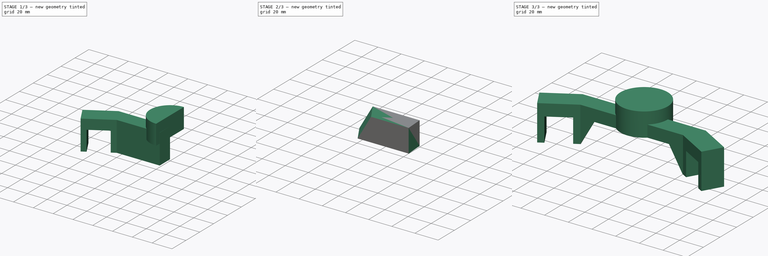
[diagram: build sequence overview — one tinted view per stage of 3, left to right]
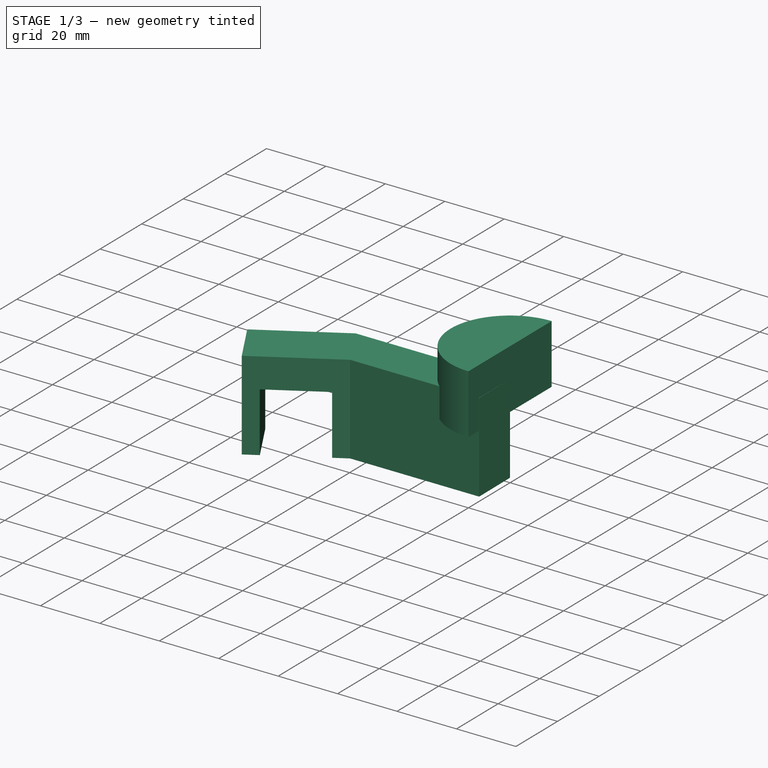
[diagram: stage 1 of 3 — iso view after this stage's code; geometry added in this stage tinted green]
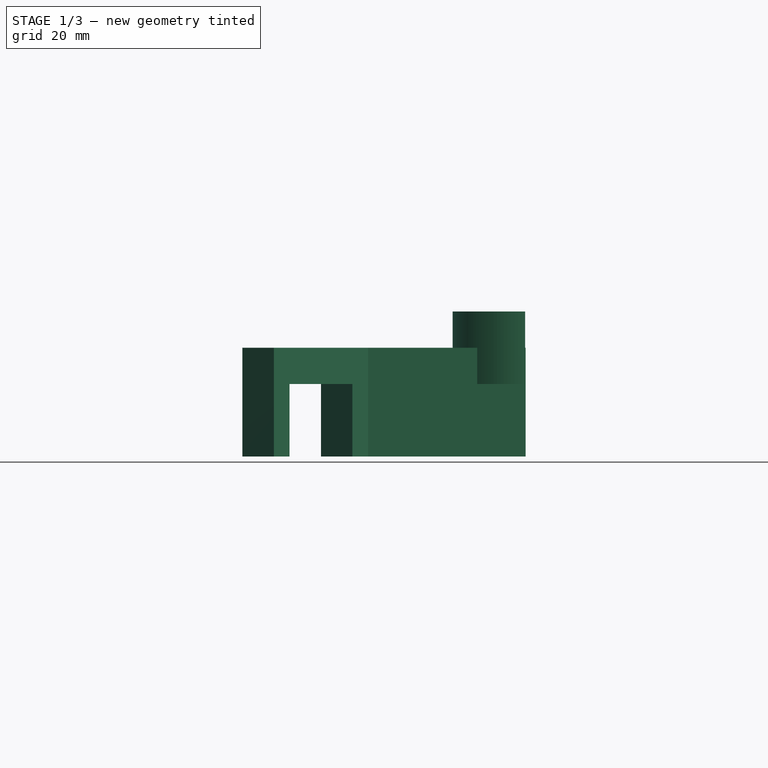
[diagram: stage 1 of 3 — front view after this stage's code; geometry added in this stage tinted green]
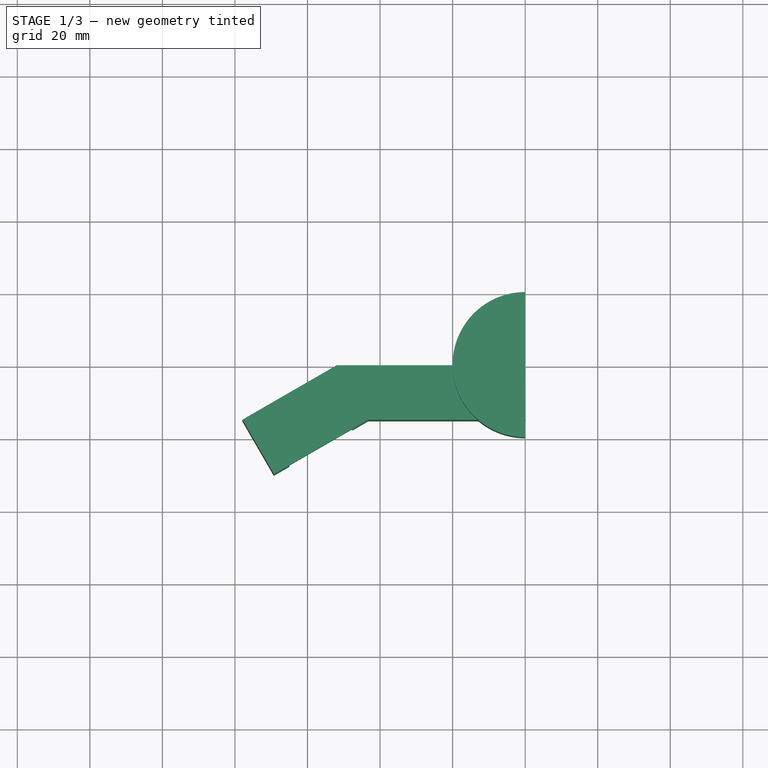
[diagram: stage 1 of 3 — top view after this stage's code; geometry added in this stage tinted green]
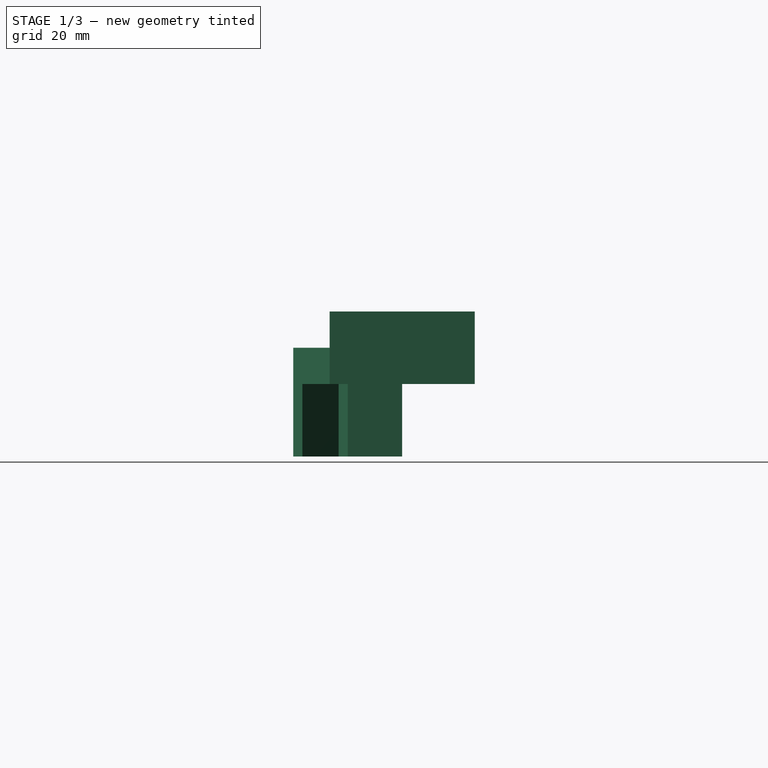
[diagram: stage 1 of 3 — right view after this stage's code; geometry added in this stage tinted green]
FCSTD DOCUMENT  (FreeCAD 0.16R6703 (Git))
Label: holder
License: All rights reserved
LicenseURL: http://en.wikipedia.org/wiki/All_rights_reserved
objects: Sketcher::SketchObject×5, PartDesign::Pad×2, Part::MultiFuse×2, PartDesign::Pocket×1, Part::Loft×1, Part::Cut×1, Part::Mirroring×1
note: 16 computed .brp shape members not serialized (recipe doc carries the construction recipe); baked Part::Feature solids carry a one-line shape summary decoded from their .brp

FEATURE [Sketcher::SketchObject] Sketch
  sketch-geometry (12):
    g0: LineSegment [constr] StartX=-100 StartY=173.205 StartZ=0 EndX=0 EndY=0 EndZ=0
    g1: LineSegment [constr] StartX=0 StartY=10 StartZ=0 EndX=-95.6699 EndY=175.705 EndZ=0
    g2: LineSegment [constr] StartX=0 StartY=100 StartZ=0 EndX=-51.9615 EndY=100 EndZ=0
    g3: GeomPoint [constr] X=-51.9615 Y=100 Z=0
    g4: LineSegment StartX=-51.9615 StartY=100 StartZ=0 EndX=0 EndY=100 EndZ=0
    g5: LineSegment StartX=-43.3013 StartY=85 StartZ=0 EndX=0.112312 EndY=85 EndZ=0
    g6: LineSegment StartX=-51.9615 StartY=100 StartZ=0 EndX=-77.9423 EndY=85 EndZ=0
    g7: LineSegment StartX=-77.9423 StartY=85 StartZ=0 EndX=-69.282 EndY=70 EndZ=0
    g8: LineSegment StartX=-69.282 StartY=70 StartZ=0 EndX=-43.3013 EndY=85 EndZ=0
    g9: LineSegment StartX=0 StartY=100 StartZ=0 EndX=0.112312 EndY=85 EndZ=0
    g10: LineSegment [constr] StartX=-95.6699 StartY=175.705 StartZ=0 EndX=-100 EndY=173.205 EndZ=0
    g11: GeomPoint [constr] X=0 Y=100 Z=0
  constraints (32):
    c: Coincident(g0,g-1)
    c: Angle(g-2,g0) = 0.523599
    c: PointOnObject(g1,g-2)
    c: DistanceY(g-1,g2) = 100
    c: Distance(g0) = 200
    c: Horizontal(g2)
    c: PointOnObject(g3,g1)
    c: Coincident(g2,g3)
    c: PointOnObject(g4,g1)
    c: PointOnObject(g4,g-2)
    c: Horizontal(g4)
    c: PointOnObject(g5,g1)
    c: Horizontal(g5)
    c: DistanceY(g5,g4) = 15
    c: Coincident(g4,g6)
    c: Coincident(g6,g7)
    c: Coincident(g7,g8)
    c: Coincident(g8,g5)
    c: Parallel(g6,g8)
    c: Distance(g6) = 30
    c: Perpendicular(g6,g1)
    c: Coincident(g9,g4)
    c: Coincident(g9,g5)
    c: Coincident(g10,g1)
    c: Coincident(g10,g0)
    c: Distance(g10) = 5
    c: Parallel(g1,g0)
    c: Perpendicular(g0,g10)
    c: Equal(g6,g8)
    c: PointOnObject(g11,g9)
    c: Coincident(g2,g11)
    c: Coincident(g4,g2)
FEATURE [Sketcher::SketchObject] Sketch002
  Placement = pos=(0,85,0) rot=(1,0,0;1.5708rad)
  sketch-geometry (6):
    g0: LineSegment StartX=1 StartY=20 StartZ=0 EndX=-31.453 EndY=20 EndZ=0
    g1: LineSegment StartX=-31.453 StartY=20 StartZ=0 EndX=-43 EndY=0 EndZ=0
    g2: LineSegment StartX=-43 StartY=0 StartZ=0 EndX=1 EndY=0 EndZ=0
    g3: GeomPoint [constr] X=1 Y=20 Z=0
    g4: LineSegment StartX=1 StartY=20 StartZ=0 EndX=1 EndY=0 EndZ=0
    g5: GeomPoint [constr] X=1 Y=0 Z=0
  constraints (14):
    c: Horizontal(g0)
    c: Coincident(g0,g1)
    c: Coincident(g1,g2)
    c: DistanceY(g2,g0) = 20
    c: Angle(g2,g1) = 1.0472
    c: Coincident(g3,g0)
    c: DistanceX(g2,g2) = 44
    c: Coincident(g4,g0)
    c: Coincident(g4,g2)
    c: Vertical(g4)
    c: PointOnObject(g5,g-1)
    c: Coincident(g5,g2)
    c: DistanceX(g-1,g2) = 1
    c: Horizontal(g2)
FEATURE [Sketcher::SketchObject] Sketch005
  Placement = pos=(0,0,30) rot=(0,0,1;0rad)
  sketch-geometry (5):
    g0: ArcOfCircle CenterX=0 CenterY=100 CenterZ=0 NormalX=0 NormalY=0 NormalZ=1 Radius=20 StartAngle=1.5708 EndAngle=4.71239
    g1: GeomPoint [constr] X=0 Y=80 Z=0
    g2: LineSegment StartX=0 StartY=120 StartZ=0 EndX=0 EndY=80 EndZ=0
    g3: GeomPoint [constr] X=0 Y=120 Z=0
    g4: GeomPoint [constr] X=0 Y=100 Z=0
  constraints (12):
    c: Radius(g0) = 20
    c: PointOnObject(g1,g0)
    c: PointOnObject(g2,g-2)
    c: PointOnObject(g2,g-2)
    c: Coincident(g1,g2)
    c: PointOnObject(g3,g0)
    c: Coincident(g2,g3)
    c: DistanceY(g-1,g0) = 100
    c: PointOnObject(g0,g2)
    c: PointOnObject(g0,g2)
    c: PointOnObject(g4,g2)
    c: Coincident(g0,g4)
FEATURE [PartDesign::Pad] Pad
  Length = 30
  Length2 = 100
  Sketch = -> Sketch
  Type = 0
FEATURE [Sketcher::SketchObject] Sketch001
  Placement = pos=(-47.6314,82.5,0) rot=(0.935113,0.250563,0.250563;1.63783rad)
  Support = -> Pad [Face5]
  sketch-geometry (4):
    g0: LineSegment StartX=0 StartY=0 StartZ=0 EndX=-20 EndY=0 EndZ=0
    g1: LineSegment StartX=-20 StartY=0 StartZ=0 EndX=-20 EndY=20 EndZ=0
    g2: LineSegment StartX=-20 StartY=20 StartZ=0 EndX=0 EndY=20 EndZ=0
    g3: LineSegment StartX=0 StartY=20 StartZ=0 EndX=0 EndY=0 EndZ=0
  constraints (11):
    c: Coincident(g0,g1)
    c: Coincident(g1,g2)
    c: Coincident(g2,g3)
    c: Coincident(g3,g0)
    c: Horizontal(g0)
    c: Horizontal(g2)
    c: Vertical(g1)
    c: Vertical(g3)
    c: Coincident(g0,g-1)
    c: Equal(g2,g3)
    c: DistanceY(g3,g3) = 20
FEATURE [PartDesign::Pocket] Pocket
  Length = 50
  Sketch = -> Sketch001
  Type = 0
FEATURE [PartDesign::Pad] Pad001
  Length = 20
  Length2 = 100
  Midplane = true
  Placement = pos=(0,0,30) rot=(0,0,1;0rad)
  Sketch = -> Sketch005
  Type = 0
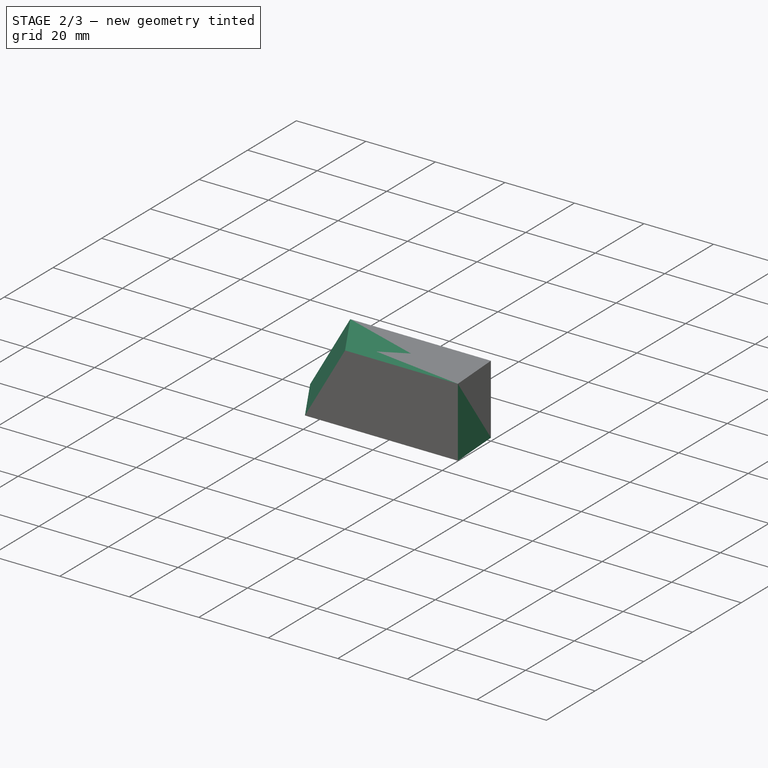
[diagram: stage 2 of 3 — iso view after this stage's code; geometry added in this stage tinted green]
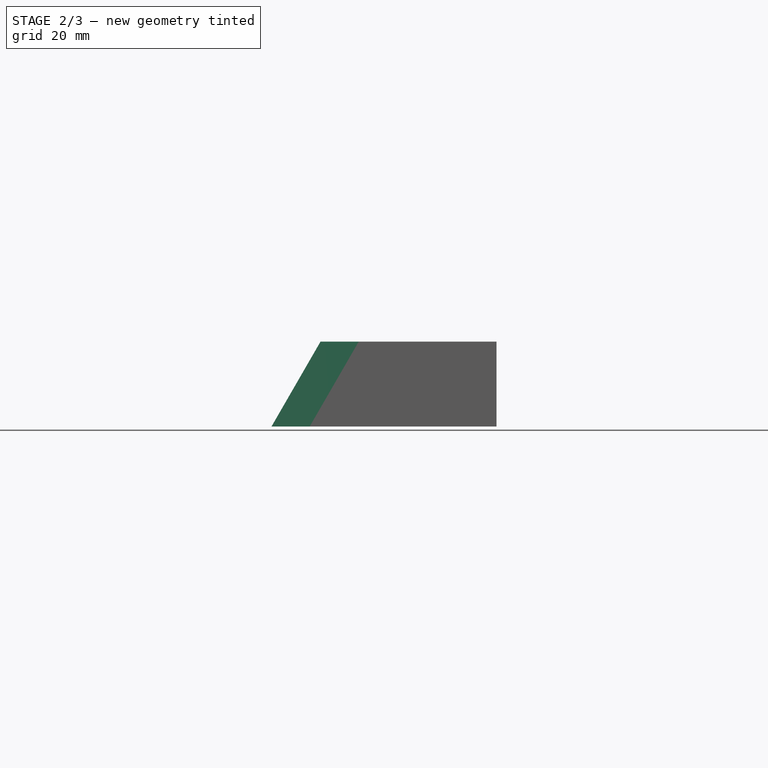
[diagram: stage 2 of 3 — front view after this stage's code; geometry added in this stage tinted green]
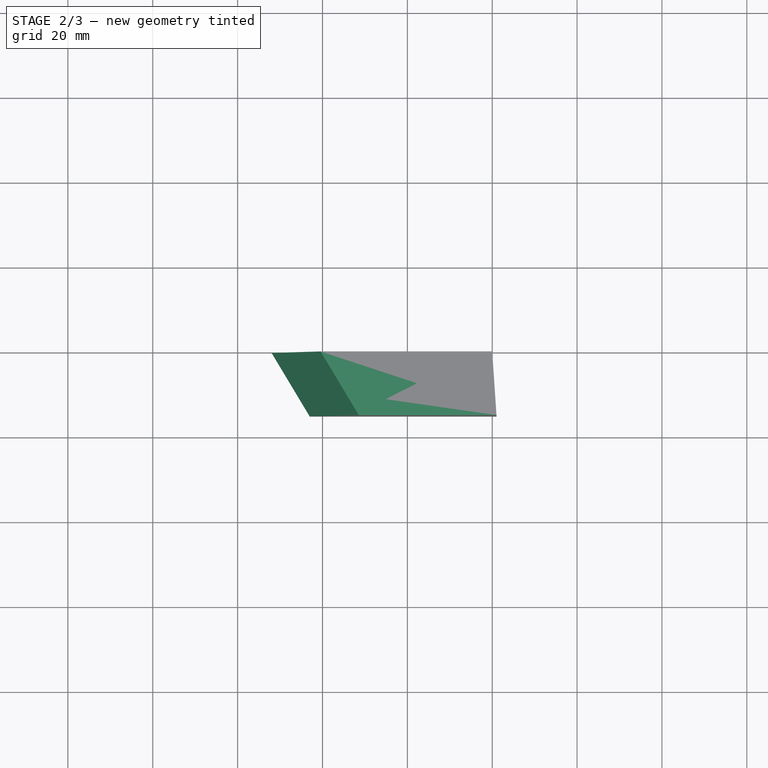
[diagram: stage 2 of 3 — top view after this stage's code; geometry added in this stage tinted green]
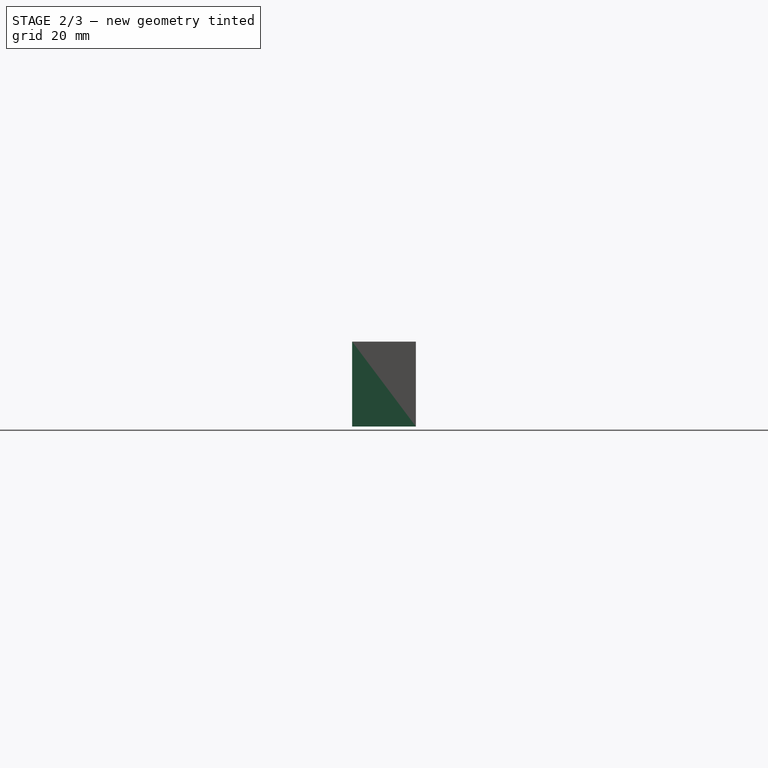
[diagram: stage 2 of 3 — right view after this stage's code; geometry added in this stage tinted green]
FEATURE [Part::MultiFuse] Fusion
  Shapes = -> [Pocket,Pad001]
FEATURE [Sketcher::SketchObject] Sketch003
  Placement = pos=(0,100,0) rot=(0,0.707107,0.707107;3.14159rad)
  Support = -> Fusion [Face9]
  sketch-geometry (4):
    g0: LineSegment StartX=0 StartY=20 StartZ=0 EndX=40.453 EndY=20 EndZ=0
    g1: LineSegment StartX=40.453 StartY=20 StartZ=0 EndX=52 EndY=0 EndZ=0
    g2: LineSegment StartX=52 StartY=0 StartZ=0 EndX=0 EndY=0 EndZ=0
    g3: LineSegment StartX=0 StartY=0 StartZ=0 EndX=0 EndY=20 EndZ=0
  constraints (11):
    c: PointOnObject(g0,g-2)
    c: Horizontal(g0)
    c: Coincident(g0,g1)
    c: PointOnObject(g1,g-1)
    c: Coincident(g1,g2)
    c: Coincident(g2,g-1)
    c: Coincident(g2,g3)
    c: Coincident(g3,g0)
    c: Angle(g1,g2) = 1.0472
    c: DistanceX(g2,g2) = 52
    c: DistanceY(g3,g3) = 20
FEATURE [Part::Loft] Loft
  Closed = false
  Ruled = false
  Sections = -> [Sketch002,Sketch003]
  Solid = true
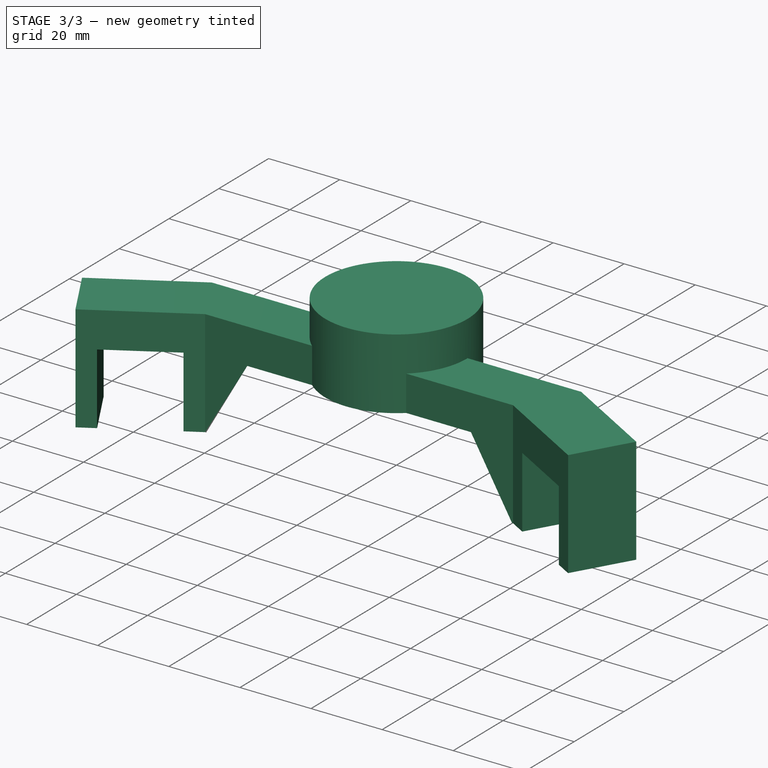
[diagram: stage 3 of 3 — iso view after this stage's code; geometry added in this stage tinted green]
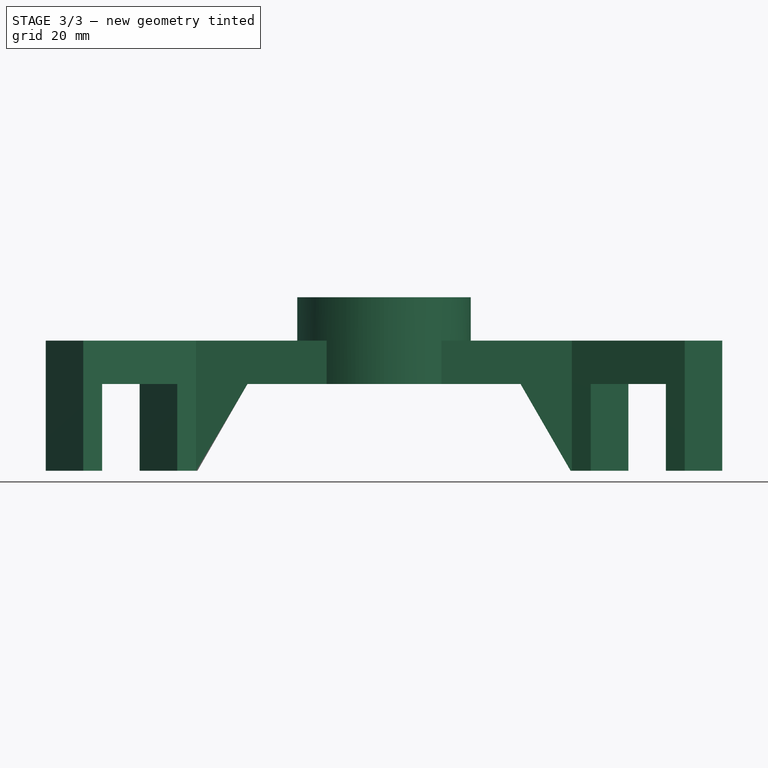
[diagram: stage 3 of 3 — front view after this stage's code; geometry added in this stage tinted green]
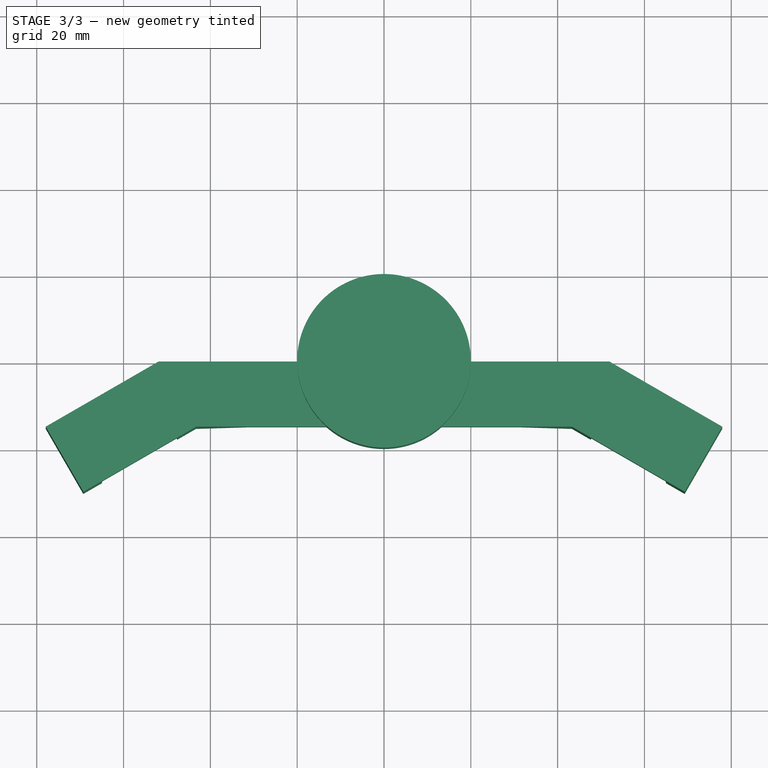
[diagram: stage 3 of 3 — top view after this stage's code; geometry added in this stage tinted green]
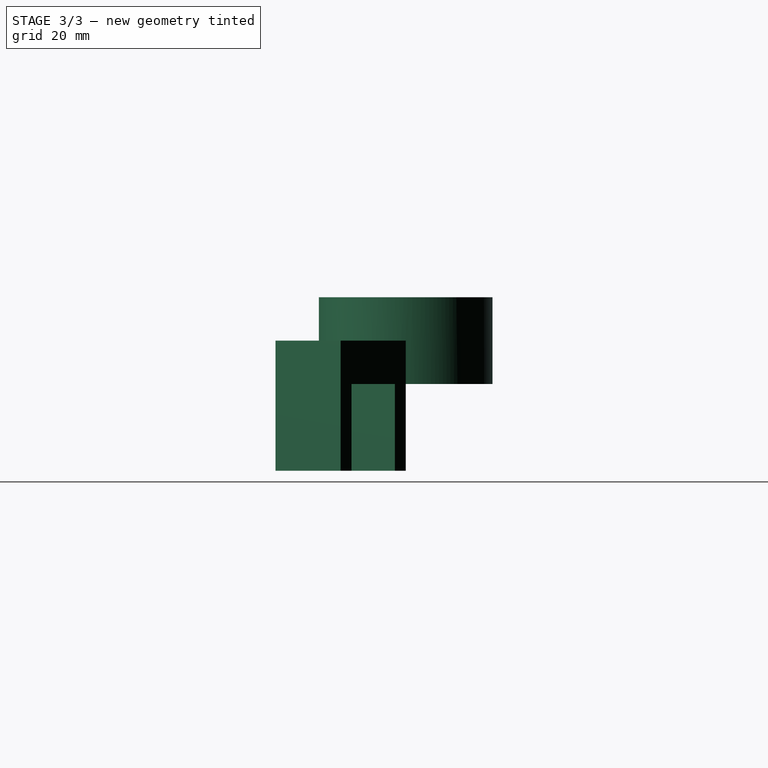
[diagram: stage 3 of 3 — right view after this stage's code; geometry added in this stage tinted green]
FEATURE [Part::Cut] Cut
  Base = -> Fusion
  Tool = -> Loft
FEATURE [Part::Mirroring] Part__Mirroring  label="Cut (Mirror #1)"
  Base = (0,0,0)
  Normal = (1,0,0)
  Source = -> Cut
FEATURE [Part::MultiFuse] Fusion001
  Shapes = -> [Part__Mirroring,Cut]
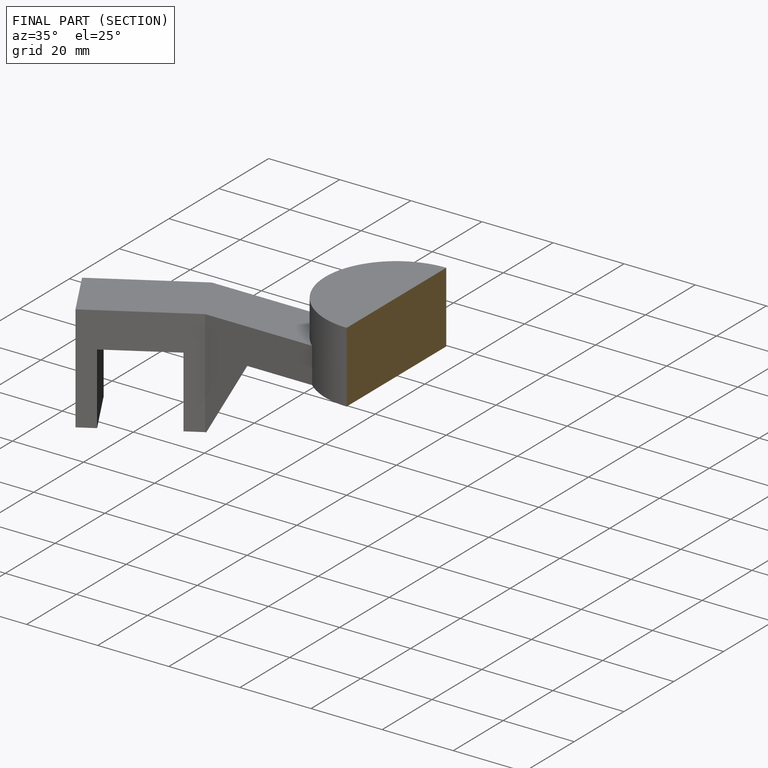
[diagram: finished part — half-section view (interior)]
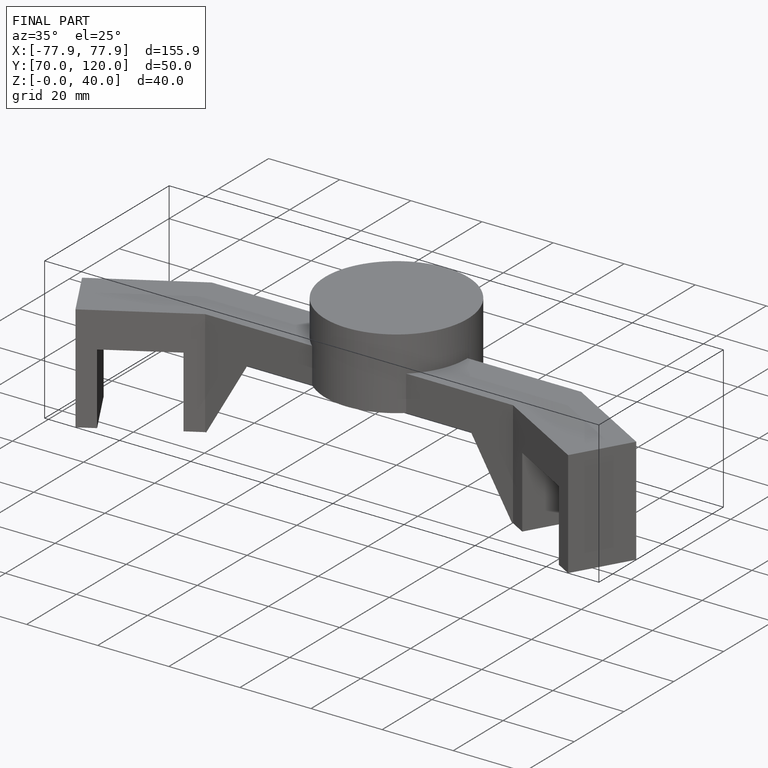
[diagram: finished part — iso view with bounding-box wireframe]
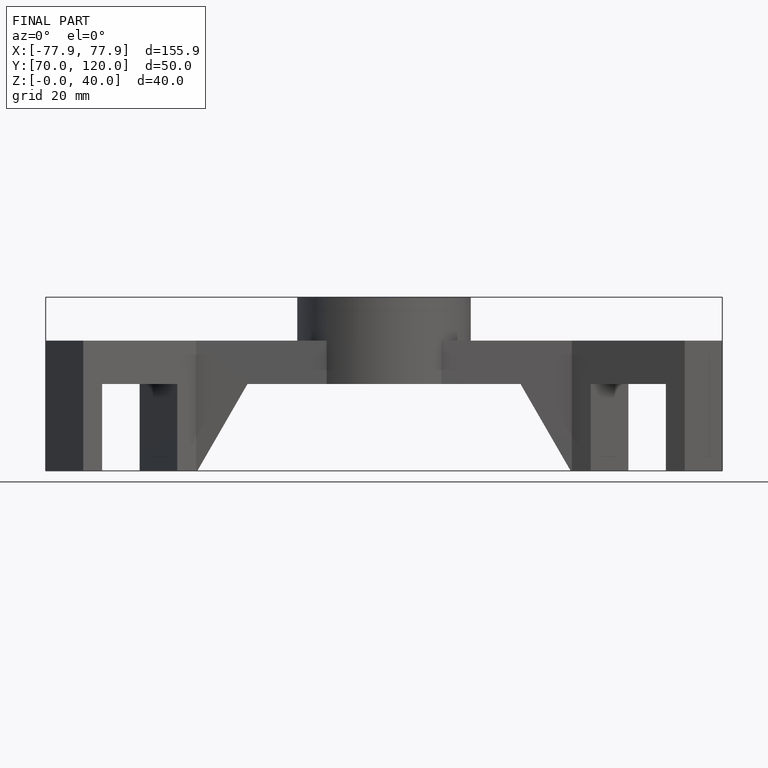
[diagram: finished part — front view with bounding-box wireframe]
